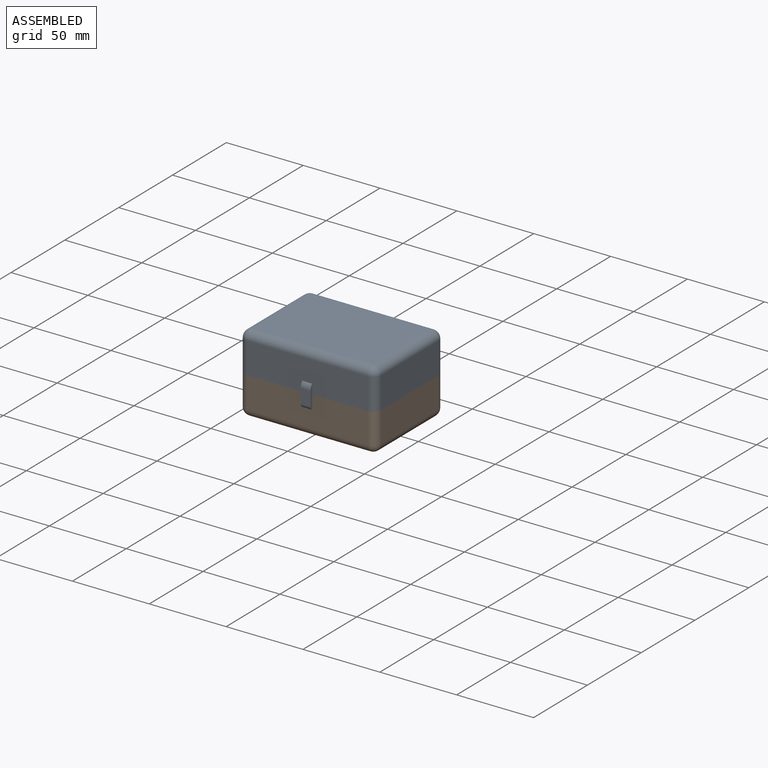
[diagram: assembled view]
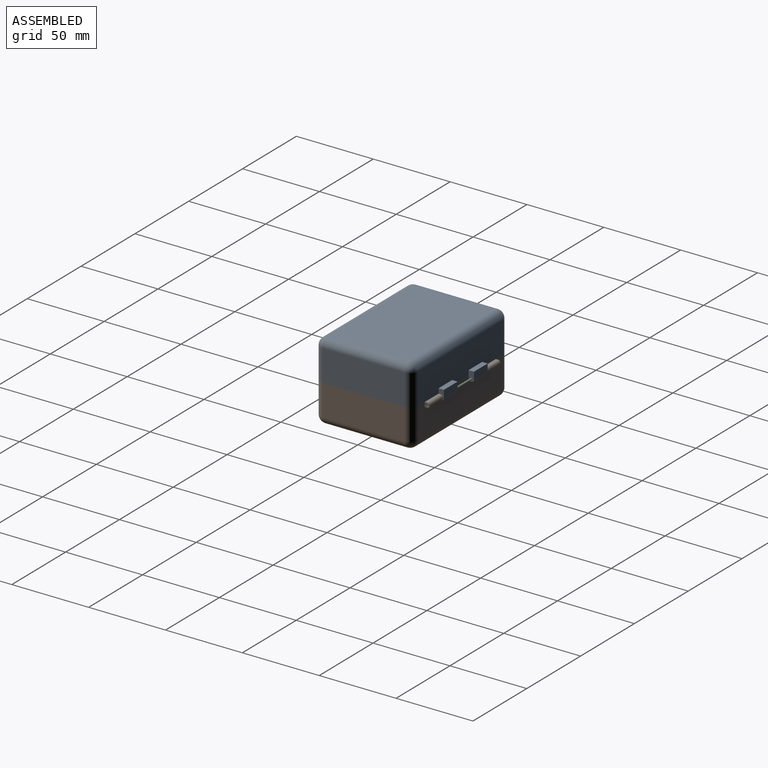
[diagram: assembled view, second angle]
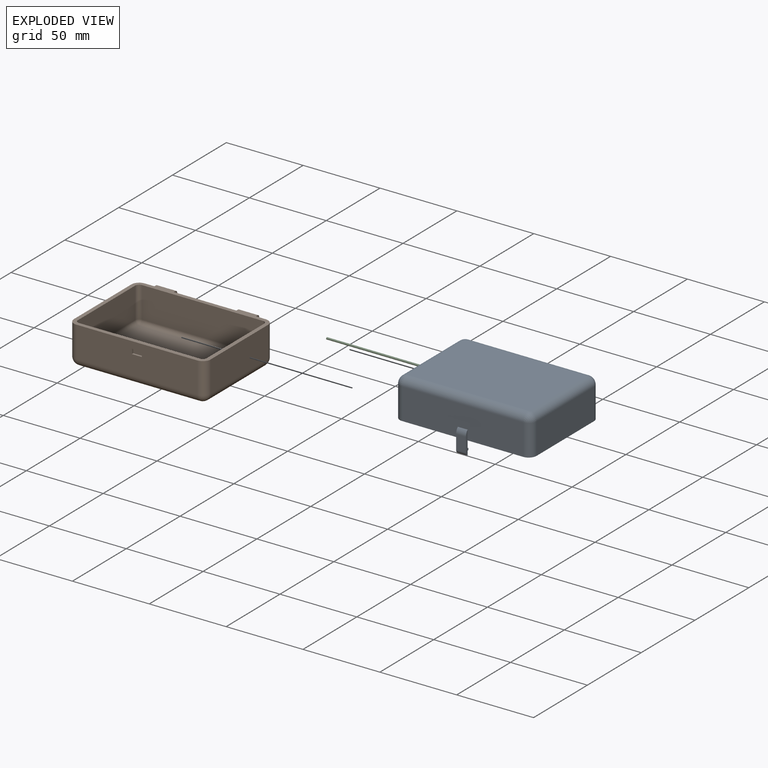
[diagram: exploded view]
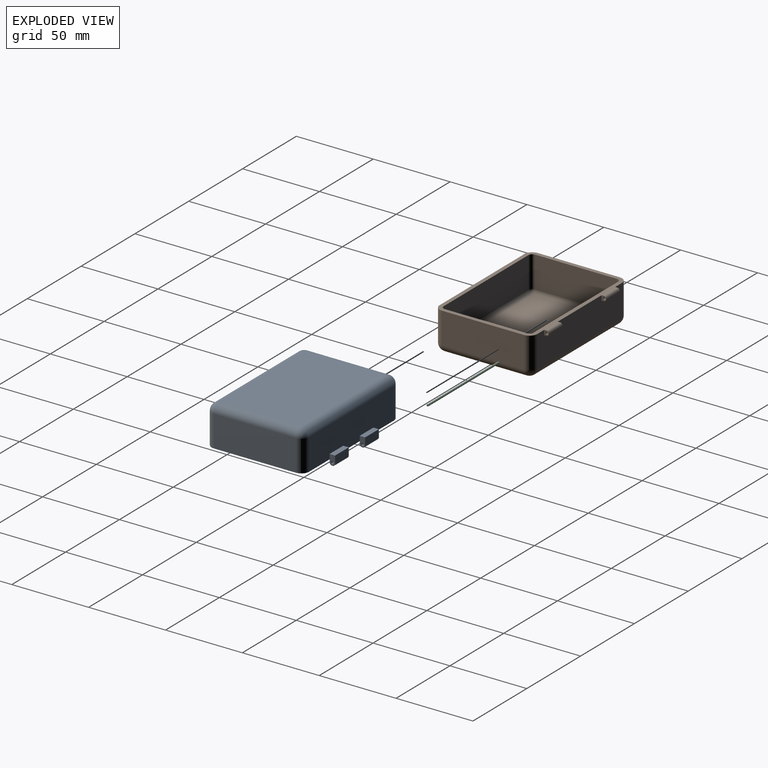
[diagram: exploded view, second angle]
ASSEMBLY  parts=3 mates=2
PART A: 64 faces, bbox 88.9x68.6x34.3 mm
  f0: plane 6.35x2.92mm, normal (0,1,0), area 18.5mm2, adj f49,f50,f53,f56
  f1: plane 78.74x20.32mm, normal (0,-1,0), area 1559.7mm2, adj f3,f9,f11,f13,f49,f50,f52
  f2: plane 53.34x20.32mm, normal (-1,0,0), area 1083.9mm2, adj f3,f7,f9,f18
  f3: plane 88.9x63.5mm, normal (0,0,-1), area 731.8mm2, adj f1,f2,f4,f8,f9,f13,f14,f18
  f4: plane 53.34x20.32mm, normal (1,0,0), area 1083.9mm2, adj f3,f5,f13,f14
  f5: cylinder r=5.08mm len=53.34mm, axis (0,-1,0), area 425.6mm2, adj f4,f6,f12,f15
  f6: plane 78.74x53.34mm, normal (0,0,1), area 4200mm2, adj f5,f7,f11,f16
  f7: cylinder r=5.08mm len=53.34mm, axis (0,-1,0), area 425.6mm2, adj f2,f6,f10,f17
  f8: plane 78.74x20.32mm, normal (0,1,0), area 1519.4mm2, adj f3,f14,f16,f18,f36,f37,f39,f42
  f9: cylinder r=5.08mm len=20.32mm, axis (0,0,-1), area 162.1mm2, adj f1,f2,f3,f10
  f10: sphere r=5.08mm, area 40.5mm2, adj f7,f9,f11
  f11: cylinder r=5.08mm len=78.74mm, axis (-1,0,0), area 628.3mm2, adj f1,f6,f10,f12
  f12: sphere r=5.08mm, area 40.5mm2, adj f5,f11,f13
  f13: cylinder r=5.08mm len=20.32mm, axis (0,0,1), area 162.1mm2, adj f1,f3,f4,f12
  f14: cylinder r=5.08mm len=20.32mm, axis (0,0,-1), area 162.1mm2, adj f3,f4,f8,f15
  f15: sphere r=5.08mm, area 40.5mm2, adj f5,f14,f16
  f16: cylinder r=5.08mm len=78.74mm, axis (1,0,0), area 628.3mm2, adj f6,f8,f15,f17
  f17: sphere r=5.08mm, area 40.5mm2, adj f7,f16,f18
  f18: cylinder r=5.08mm len=20.32mm, axis (0,0,1), area 162.1mm2, adj f2,f3,f8,f17
  f19: plane 53.34x20.32mm, normal (1,0,0), area 1083.9mm2, adj f3,f23,f26,f35
  f20: plane 53.34x20.32mm, normal (-1,0,0), area 1083.9mm2, adj f3,f21,f30,f31
  f21: cylinder r=2.54mm len=53.34mm, axis (0,-1,0), area 212.8mm2, adj f20,f22,f29,f32
  f22: plane 78.74x53.34mm, normal (0,0,-1), area 4200mm2, adj f21,f23,f28,f33
  f23: cylinder r=2.54mm len=53.34mm, axis (0,-1,0), area 212.8mm2, adj f19,f22,f27,f34
  f24: plane 78.74x20.32mm, normal (0,-1,0), area 1600mm2, adj f3,f31,f33,f35
  f25: plane 78.74x20.32mm, normal (0,1,0), area 1600mm2, adj f3,f26,f28,f30
  f26: cylinder r=2.54mm len=20.32mm, axis (0,0,-1), area 81.1mm2, adj f3,f19,f25,f27
  f27: sphere r=2.54mm, area 10.1mm2, adj f23,f26,f28
  f28: cylinder r=2.54mm len=78.74mm, axis (-1,0,0), area 314.2mm2, adj f22,f25,f27,f29
  f29: sphere r=2.54mm, area 10.1mm2, adj f21,f28,f30
  f30: cylinder r=2.54mm len=20.32mm, axis (0,0,1), area 81.1mm2, adj f3,f20,f25,f29
  f31: cylinder r=2.54mm len=20.32mm, axis (0,0,-1), area 81.1mm2, adj f3,f20,f24,f32
  f32: sphere r=2.54mm, area 10.1mm2, adj f21,f31,f33
  f33: cylinder r=2.54mm len=78.74mm, axis (1,0,0), area 314.2mm2, adj f22,f24,f32,f34
  f34: sphere r=2.54mm, area 10.1mm2, adj f23,f33,f35
  f35: cylinder r=2.54mm len=20.32mm, axis (0,0,1), area 81.1mm2, adj f3,f19,f24,f34
  f36: plane 12.7x3.56mm, normal (0,0,1), area 45.2mm2, adj f8,f37,f39,f40
  f37: plane 6.48x3.56mm, normal (1,0,0), area 19.5mm2, adj f8,f36,f38,f40,f41,f60,f61,f63
  f38: plane 12.7x0.36mm, normal (0,0,-1), area 4.5mm2, adj f37,f39,f60,f61
  f39: plane 6.48x3.56mm, normal (-1,0,0), area 19.5mm2, adj f8,f36,f38,f40,f41,f60,f61,f63
  f40: plane 12.7x4.88mm, normal (0,1,0), area 61.9mm2, adj f36,f37,f39,f61
  f41: plane 12.7x1.7mm, normal (0,-1,0), area 21.6mm2, adj f3,f37,f39,f60
  f42: plane 6.35x3.56mm, normal (-1,0,0), area 19mm2, adj f8,f43,f45,f46,f47,f58,f59,f62
  f43: plane 12.7x3.56mm, normal (0,0,1), area 45.2mm2, adj f8,f42,f44,f46
  f44: plane 6.35x3.56mm, normal (1,0,0), area 19mm2, adj f8,f43,f45,f46,f47,f58,f59,f62
  f45: plane 12.7x0.36mm, normal (0,0,-1), area 4.5mm2, adj f42,f44,f58,f59
  f46: plane 12.7x4.75mm, normal (0,1,0), area 60.3mm2, adj f42,f43,f44,f59
  f47: plane 12.7x1.58mm, normal (0,-1,0), area 20mm2, adj f3,f42,f44,f58
  f48: plane 6.35x4.72mm, normal (0,1,0), area 30mm2, adj f3,f49,f50,f54
  f49: plane 15.27x2.35mm, normal (1,0,0), area 22.3mm2, adj f0,f1,f48,f51,f52,f53,f54,f55
  f50: plane 15.27x2.35mm, normal (-1,0,0), area 22.3mm2, adj f0,f1,f48,f51,f52,f53,f54,f55
  f51: plane 9.22x6.35mm, normal (0,-1,0), area 58.6mm2, adj f49,f50,f52,f56
  f52: cylinder r=5.08mm len=6.35mm, axis (1,0,0), area 26.2mm2, adj f1,f49,f50,f51
  f53: plane 6.35x0.25mm, normal (0,0,-1), area 1.6mm2, adj f0,f49,f50,f57
  f54: plane 6.35x0.76mm, normal (0,0,1), area 4.8mm2, adj f48,f49,f50,f55
  f55: plane 6.35x0.76mm, normal (0,1,0), area 4.8mm2, adj f49,f50,f54,f57
  f56: cylinder r=2.54mm len=6.35mm, axis (1,0,0), area 19.1mm2, adj f0,f49,f50,f51
  f57: cylinder r=0.51mm len=6.35mm, axis (1,0,0), area 5.1mm2, adj f49,f50,f53,f55
  f58: cylinder r=1.6mm len=12.7mm, axis (-1,0,0), area 31.9mm2, adj f42,f44,f45,f47
  f59: cylinder r=1.6mm len=12.7mm, axis (1,0,0), area 31.9mm2, adj f42,f44,f45,f46
  f60: cylinder r=1.6mm len=12.7mm, axis (-1,0,0), area 31.9mm2, adj f37,f38,f39,f41
  f61: cylinder r=1.6mm len=12.7mm, axis (1,0,0), area 31.9mm2, adj f37,f38,f39,f40
  f62: cylinder r=0.89mm len=12.7mm, axis (1,0,0), area 70.9mm2, adj f42,f44
  f63: cylinder r=0.89mm len=12.7mm, axis (1,0,0), area 70.9mm2, adj f37,f39
PART B: 50 faces, bbox 88.9x66.5x25.4 mm
  f0: plane 78.74x20.32mm, normal (0,-1,0), area 1579.8mm2, adj f1,f8,f10,f12,f45,f46,f47,f48
  f1: plane 88.9x64.96mm, normal (0,0,1), area 768.9mm2, adj f0,f2,f6,f7,f8,f12,f13,f17
  f2: plane 53.34x20.32mm, normal (-1,0,0), area 1083.9mm2, adj f1,f3,f8,f17
  f3: cylinder r=5.08mm len=53.34mm, axis (0,-1,0), area 425.6mm2, adj f2,f4,f9,f16
  f4: plane 78.74x53.34mm, normal (0,0,-1), area 4200mm2, adj f3,f5,f10,f15
  f5: cylinder r=5.08mm len=53.34mm, axis (0,-1,0), area 425.6mm2, adj f4,f6,f11,f14
  f6: plane 53.34x20.32mm, normal (1,0,0), area 1083.9mm2, adj f1,f5,f12,f13
  f7: plane 78.74x20.32mm, normal (0,1,0), area 1519.4mm2, adj f1,f13,f15,f17,f35,f36,f37,f38
  f8: cylinder r=5.08mm len=20.32mm, axis (0,0,-1), area 162.1mm2, adj f0,f1,f2,f9
  f9: sphere r=5.08mm, area 40.5mm2, adj f3,f8,f10
  f10: cylinder r=5.08mm len=78.74mm, axis (1,0,0), area 628.3mm2, adj f0,f4,f9,f11
  f11: sphere r=5.08mm, area 40.5mm2, adj f5,f10,f12
  f12: cylinder r=5.08mm len=20.32mm, axis (0,0,1), area 162.1mm2, adj f0,f1,f6,f11
  f13: cylinder r=5.08mm len=20.32mm, axis (0,0,-1), area 162.1mm2, adj f1,f6,f7,f14
  f14: sphere r=5.08mm, area 40.5mm2, adj f5,f13,f15
  f15: cylinder r=5.08mm len=78.74mm, axis (-1,0,0), area 628.3mm2, adj f4,f7,f14,f16
  f16: sphere r=5.08mm, area 40.5mm2, adj f3,f15,f17
  f17: cylinder r=5.08mm len=20.32mm, axis (0,0,1), area 162.1mm2, adj f1,f2,f7,f16
  f18: plane 53.34x20.32mm, normal (1,0,0), area 1083.9mm2, adj f1,f19,f25,f34
  f19: cylinder r=2.54mm len=53.34mm, axis (0,-1,0), area 212.8mm2, adj f18,f20,f26,f33
  f20: plane 78.74x53.34mm, normal (0,0,1), area 4200mm2, adj f19,f21,f27,f32
  f21: cylinder r=2.54mm len=53.34mm, axis (0,-1,0), area 212.8mm2, adj f20,f22,f28,f31
  f22: plane 53.34x20.32mm, normal (-1,0,0), area 1083.9mm2, adj f1,f21,f29,f30
  f23: plane 78.74x20.32mm, normal (0,-1,0), area 1600mm2, adj f1,f30,f32,f34
  f24: plane 78.74x20.32mm, normal (0,1,0), area 1600mm2, adj f1,f25,f27,f29
  f25: cylinder r=2.54mm len=20.32mm, axis (0,0,-1), area 81.1mm2, adj f1,f18,f24,f26
  f26: sphere r=2.54mm, area 10.1mm2, adj f19,f25,f27
  f27: cylinder r=2.54mm len=78.74mm, axis (1,0,0), area 314.2mm2, adj f20,f24,f26,f28
  f28: sphere r=2.54mm, area 10.1mm2, adj f21,f27,f29
  f29: cylinder r=2.54mm len=20.32mm, axis (0,0,1), area 81.1mm2, adj f1,f22,f24,f28
  f30: cylinder r=2.54mm len=20.32mm, axis (0,0,-1), area 81.1mm2, adj f1,f22,f23,f31
  f31: sphere r=2.54mm, area 10.1mm2, adj f21,f30,f32
  f32: cylinder r=2.54mm len=78.74mm, axis (-1,0,0), area 314.2mm2, adj f20,f23,f31,f33
  f33: sphere r=2.54mm, area 10.1mm2, adj f19,f32,f34
  f34: cylinder r=2.54mm len=20.32mm, axis (0,0,1), area 81.1mm2, adj f1,f18,f23,f33
  f35: plane 3.18x3.05mm, normal (-1,0,0), area 6.1mm2, adj f1,f7,f37,f42,f44
  f36: plane 3.18x3.05mm, normal (1,0,0), area 6.1mm2, adj f1,f7,f37,f42,f44
  f37: plane 12.7x1.46mm, normal (0,0,-1), area 18.5mm2, adj f7,f35,f36,f42
  f38: plane 3.18x3.05mm, normal (1,0,0), area 6.1mm2, adj f1,f7,f39,f41,f43
  f39: plane 12.7x1.46mm, normal (0,0,-1), area 18.5mm2, adj f7,f38,f40,f41
  f40: plane 3.18x3.05mm, normal (-1,0,0), area 6.1mm2, adj f1,f7,f39,f41,f43
  f41: cylinder r=1.59mm len=12.7mm, axis (-1,0,0), area 63.3mm2, adj f1,f38,f39,f40
  f42: cylinder r=1.59mm len=12.7mm, axis (1,0,0), area 63.3mm2, adj f1,f35,f36,f37
  f43: cylinder r=0.89mm len=12.7mm, axis (1,0,0), area 70.9mm2, adj f38,f40
  f44: cylinder r=0.89mm len=12.7mm, axis (1,0,0), area 70.9mm2, adj f35,f36
  f45: plane 6.35x1.27mm, normal (0,0,-1), area 8.1mm2, adj f0,f46,f48,f49
  f46: plane 3.18x1.27mm, normal (1,0,0), area 4mm2, adj f0,f45,f47,f49
  f47: plane 6.35x1.27mm, normal (0,0,1), area 8.1mm2, adj f0,f46,f48,f49
  f48: plane 3.18x1.27mm, normal (-1,0,0), area 4mm2, adj f0,f45,f47,f49
  f49: plane 6.35x3.18mm, normal (0,-1,0), area 20.2mm2, adj f45,f46,f47,f48
PART C: 3 faces, bbox 1.3x1.3x66 mm
  f0: cylinder r=0.64mm len=66.04mm, axis (0,0,-1), area 263.5mm2, adj f1,f2
  f1: plane 1.27x1.27mm, normal (0,0,1), area 1.3mm2, adj f0
  f2: plane 1.27x1.27mm, normal (0,0,-1), area 1.3mm2, adj f0
PLACE A rot(axis=(1,0,0),0deg) t=(-44.45,0,25.4)mm
PLACE B t=(-44.45,0,25.4)mm
PLACE C rot(axis=(0,1,0),90deg) t=(-33.02,33.53,23.81)mm
MATE revolute A.f62 <-> B.f43  axis (1,0,0) through (20.32,33.53,23.81)mm
MATE revolute B.f43 <-> C.f0  axis (1,0,0) through (33.02,33.53,23.81)mm
